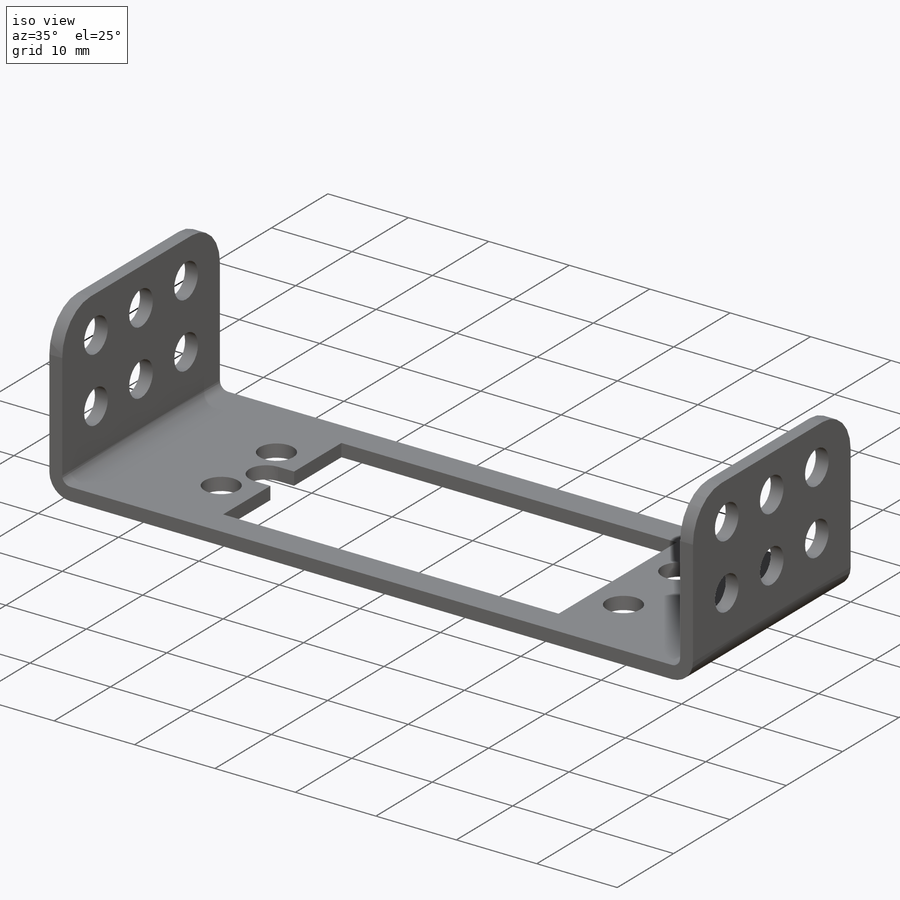
[diagram: iso view]
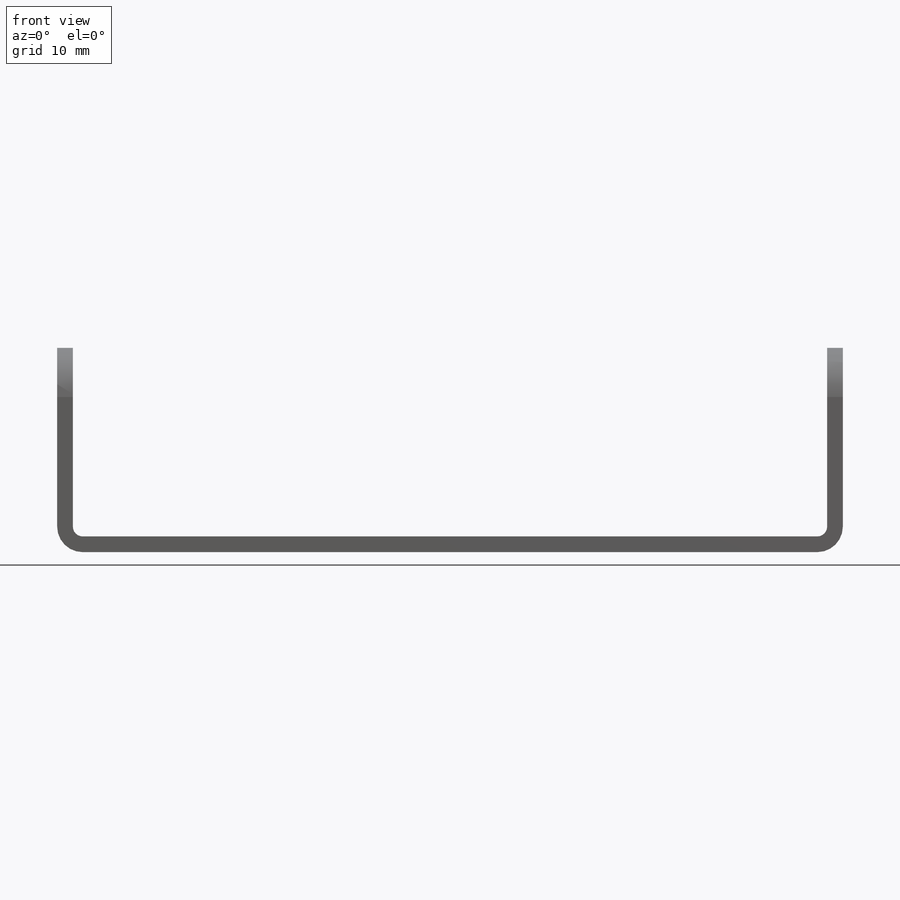
[diagram: front view]
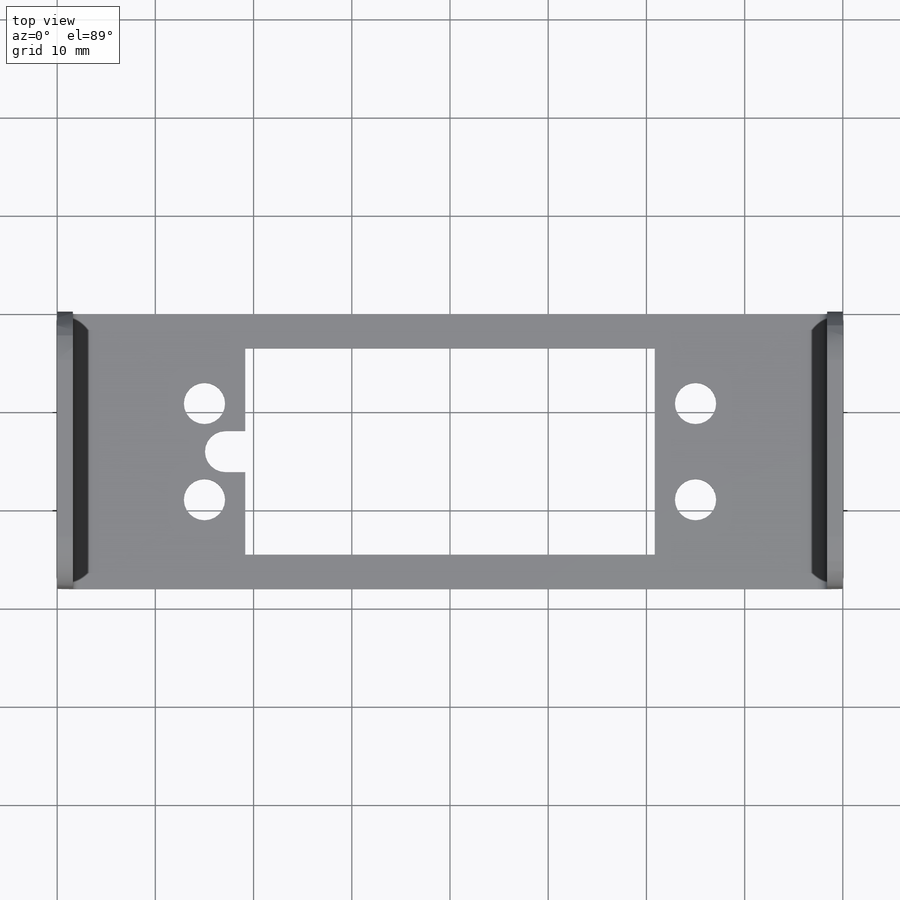
[diagram: top view]
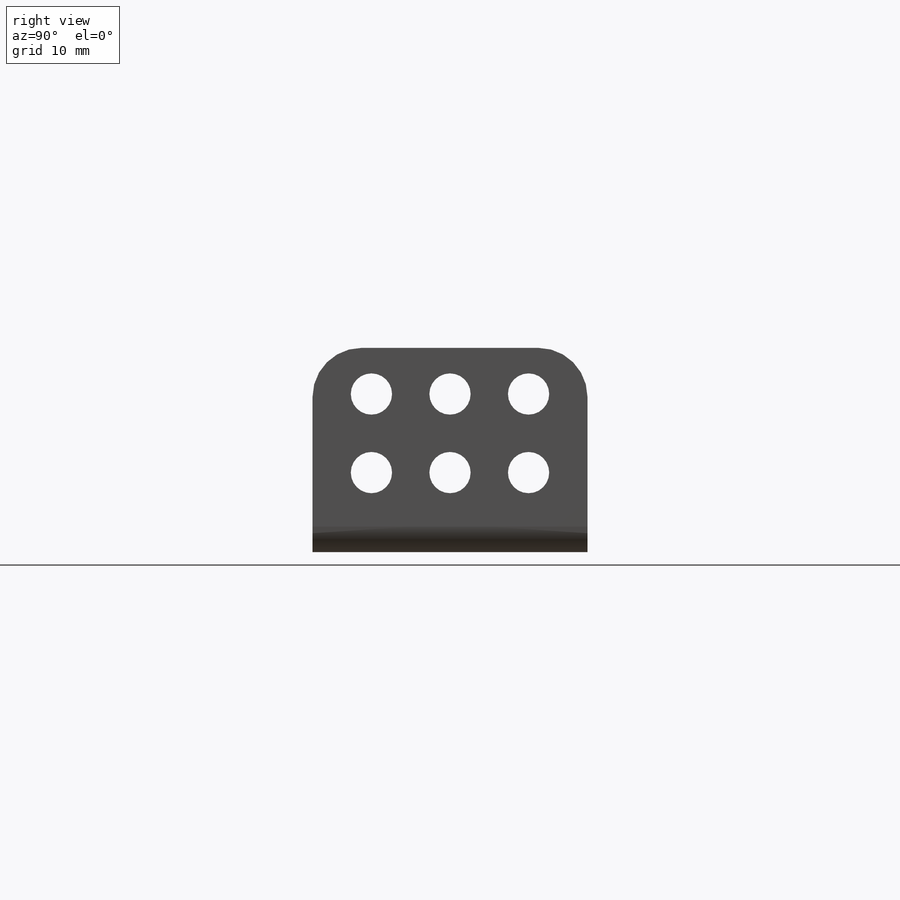
[diagram: right view]
SOLIDWORKS PART (.sldprt)
format: sldprt  version: not decoded by parser v0  size: 483,840 bytes
history: native  units: mm
features: sketch x19, fillet x5, sheet_metal_op x5, cut_extrude x4, pattern_linear x2, material x1, extrude x1 + 8 further entries (+13 scaffold rows collapsed; 5 parser-record rows omitted)
feature tree (63):
  scaffold x13  (default folders/planes/origin — collapsed)
  material  "1060 Alloy"
  sketch  "Sketch1"  dims[D1=28.0mm D2=80.0mm]
  extrude  "Boss-Extrude1"  Depth=1.6mm
  sketch  "Sketch2"  dims[c1.D1=4.2mm c1.D3=4.2mm c1.D2=8.0mm c2.D3=4.0mm c2.D2=9.8mm c3.D3=50.0mm]
  cut_extrude  "Cut-Extrude1"  [1 undecoded]
  pattern_linear  "LPattern1"  Count1=2 Spacing1=50mm Spacing2=0mm
  sketch  "Sketch15"  dims[D1=41.7mm D2=21.0mm]
  cut_extrude  "Cut-Extrude3"  Depth=10mm
  sketch  "Sketch12"
  sketch  "Sketch13"  dims[c1.D1=1.0mm c1.D4=90.0deg c1.EdgeBend2=0.0 c2.D1=1.0mm c2.D4=90.0deg c3.D1=0.5mm c3.D6=10.0mm c3.D7=20.8mm c3.D8=0.5mm]
  fillet  "Fillet1"  Radius=5mm
  sketch  "Sketch14"  dims[c1.D1=~2.54843mm c1.D2=~2.54843mm c1.D3=4.2mm c2.D1=6.0mm c2.D2=8.1mm]
  cut_extrude  "Cut-Extrude2"  [1 undecoded]
  pattern_linear  "LPattern2"  Spacing1=8mm Spacing2=8mm  [1 undecoded]
  sketch  "Sketch16"  dims[D1=4.2mm D2=2.0mm]
  cut_extrude  "Cut-Extrude4"  Depth=10mm
  sketch  "Bend-Lines1"
  sketch  "Bounding-Box1"
  sheet_metal_op  "Sheet-Metal(4)"
  "Flat-Pattern(4)"
  sketch  "Bend-Lines2"
  sketch  "Bounding-Box2"
  parser-record x5  (decoder bookkeeping rows leaked as tree rows — omitted from the tree; the rows remain in map.json)
  fillet  "Sheet-Metal(5)"  Radius=1mm
  sheet_metal_op  "Flat-Pattern(4)"
  sketch  "Bend-Lines2"
  sketch  "Bounding-Box2"
  "Flatten-<EdgeBend2>1"
  fillet  "Sheet-Metal(6)"  Radius=1mm
  sheet_metal_op  "Flat-Pattern(4)"
  sketch  "Bend-Lines2"
  sketch  "Bounding-Box2"
  "Flatten-<EdgeBend1>1"
  "Flatten-<EdgeBend2>1"
  fillet  "Sheet-Metal(7)"  Radius=1mm
  sheet_metal_op  "Flat-Pattern(4)"
  sketch  "Bend-Lines2"
  sketch  "Bounding-Box2"
  "Flatten-<EdgeBend1>1"
  "Flatten-<EdgeBend2>1"
  fillet  "Sheet-Metal(9)"  Radius=1mm
  sheet_metal_op  "Flat-Pattern(4)"
  sketch  "Bend-Lines2"
  sketch  "Bounding-Box2"
  "Flatten-<EdgeBend1>1"
  "Flatten-<EdgeBend2>1"
decode coverage: 16 of 36 modeling features carry decoded parameters; 8 rows unclassified (native names shown)
note: ~ marks probable driven/reference dimensions
note: 3 parameter values undecoded
note: suppression state not decoded; provenance and decode notes live in map.json
